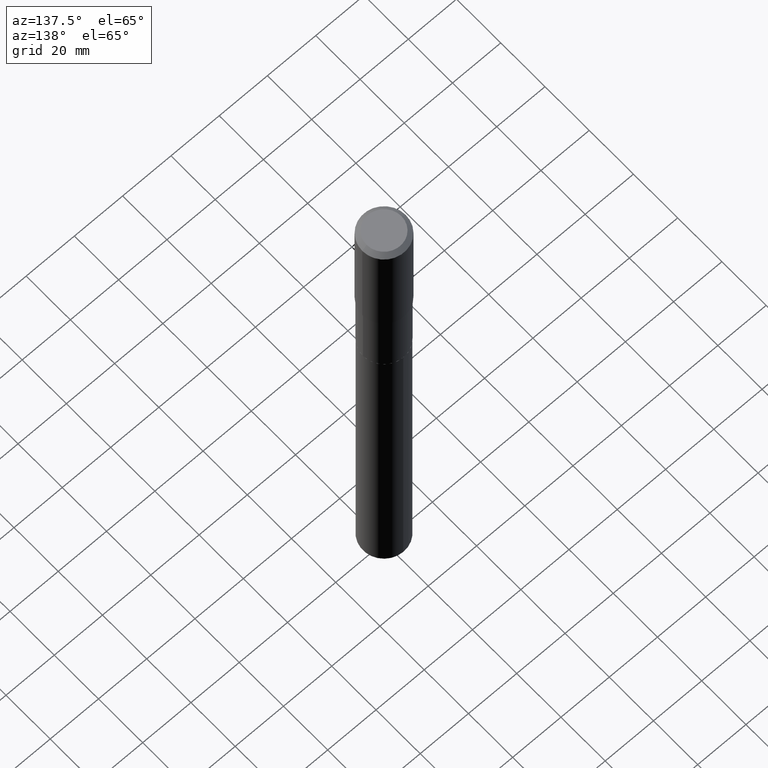
[diagram: clean part render]
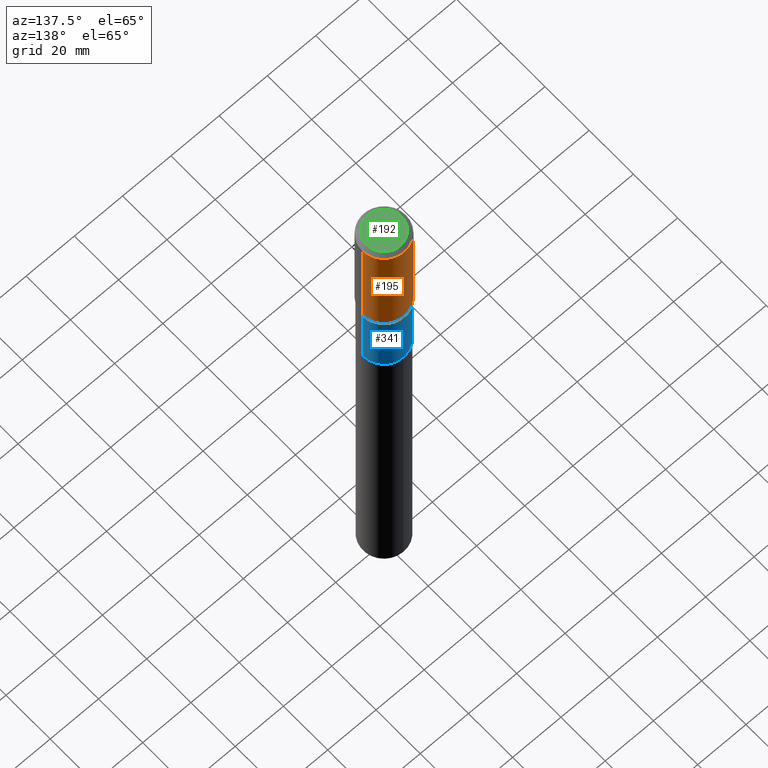
[diagram: same view with three faces highlighted in distinct colors, each labeled with its STEP entity id]
A machine part, auxiliary view with three faces highlighted in distinct colors.
Their STEP definitions:

[orange] entity #195 — the highlighted cylindrical surface (edge-blend (fillet) strip) has radius 9.0005 mm, axis along (-0, 0, 1).
#15 = AXIS2_PLACEMENT_3D ( 'NONE', #34, #301, #450 ) ;
#19 = EDGE_CURVE ( 'NONE', #102, #239, #443, .T. ) ;
#34 = CARTESIAN_POINT ( 'NONE',  ( 4.631962465795266270E-29, -6.613214803902800932E-15, -1.894099999999999673 ) ) ;
#47 = CARTESIAN_POINT ( 'NONE',  ( -0.3543499999999999983, -9.125198590273920027E-16, -0.07087000000000041877 ) ) ;
#52 = ORIENTED_EDGE ( 'NONE', *, *, #462, .F. ) ;
#53 = ORIENTED_EDGE ( 'NONE', *, *, #19, .T. ) ;
#72 = CARTESIAN_POINT ( 'NONE',  ( 0.3543500000000002204, -9.087627628740930810E-15, -1.894099999999999673 ) ) ;
#83 = DIRECTION ( 'NONE',  ( 1.000000000000000000, -6.982962677686266711E-15, 0.000000000000000000 ) ) ;
#102 = VERTEX_POINT ( 'NONE', #72 ) ;
#121 = VECTOR ( 'NONE', #232, 39.37007874015748143 ) ;
#155 = CARTESIAN_POINT ( 'NONE',  ( -0.3543500000000002204, -4.095406619736884752E-15, -1.894099999999999673 ) ) ;
#190 = DIRECTION ( 'NONE',  ( -2.445468806185136597E-29, 3.491481338843145583E-15, 1.000000000000000000 ) ) ;
#195 = ADVANCED_FACE ( 'NONE', ( #225 ), #380, .T. ) ;
#200 = ORIENTED_EDGE ( 'NONE', *, *, #233, .F. ) ;
#210 = CIRCLE ( 'NONE', #467, 0.3543499999999999983 ) ;
#222 = LINE ( 'NONE', #377, #452 ) ;
#225 = FACE_OUTER_BOUND ( 'NONE', #358, .T. ) ;
#227 = CARTESIAN_POINT ( 'NONE',  ( 0.3543499999999999983, -2.721854107321943733E-15, -0.07087000000000041877 ) ) ;
#228 = CARTESIAN_POINT ( 'NONE',  ( 1.733103742943416361E-30, -2.474412824838151867E-16, -0.07087000000000041877 ) ) ;
#232 = DIRECTION ( 'NONE',  ( -2.445468806185136877E-29, 3.491481338843145188E-15, 1.000000000000000000 ) ) ;
#233 = EDGE_CURVE ( 'NONE', #237, #322, #210, .T. ) ;
#237 = VERTEX_POINT ( 'NONE', #227 ) ;
#239 = VERTEX_POINT ( 'NONE', #155 ) ;
#247 = ORIENTED_EDGE ( 'NONE', *, *, #476, .T. ) ;
#258 = LINE ( 'NONE', #375, #121 ) ;
#269 = CARTESIAN_POINT ( 'NONE',  ( 0.000000000000000000, 0.000000000000000000, 0.000000000000000000 ) ) ;
#301 = DIRECTION ( 'NONE',  ( -2.445468806185136597E-29, 3.491481338843145583E-15, 1.000000000000000000 ) ) ;
#308 = AXIS2_PLACEMENT_3D ( 'NONE', #269, #190, #461 ) ;
#322 = VERTEX_POINT ( 'NONE', #47 ) ;
#358 = EDGE_LOOP ( 'NONE', ( #53, #247, #200, #52 ) ) ;
#375 = CARTESIAN_POINT ( 'NONE',  ( -0.3543500000000001648, 2.517808184165916180E-15, -1.743024649231826627E-29 ) ) ;
#377 = CARTESIAN_POINT ( 'NONE',  ( 0.3543500000000001648, -2.474412824838129483E-15, 1.727873240503290590E-29 ) ) ;
#380 = CYLINDRICAL_SURFACE ( 'NONE', #308, 0.3543500000000001648 ) ;
#408 = DIRECTION ( 'NONE',  ( -2.445468806185136877E-29, 3.491481338843145188E-15, 1.000000000000000000 ) ) ;
#417 = DIRECTION ( 'NONE',  ( -2.445468806185136597E-29, 3.491481338843145583E-15, 1.000000000000000000 ) ) ;
#443 = CIRCLE ( 'NONE', #15, 0.3543500000000002204 ) ;
#450 = DIRECTION ( 'NONE',  ( 1.000000000000000000, -6.982962677686266711E-15, 0.000000000000000000 ) ) ;
#452 = VECTOR ( 'NONE', #408, 39.37007874015748143 ) ;
#461 = DIRECTION ( 'NONE',  ( 1.000000000000000000, -6.982962677686265922E-15, 4.876176775795935793E-29 ) ) ;
#462 = EDGE_CURVE ( 'NONE', #102, #237, #222, .T. ) ;
#467 = AXIS2_PLACEMENT_3D ( 'NONE', #228, #417, #83 ) ;
#476 = EDGE_CURVE ( 'NONE', #239, #322, #258, .T. ) ;

[blue] entity #341 — the highlighted cylindrical surface (edge-blend (fillet) strip) has radius 8.7312 mm, axis along (-0, 0, 1).
#7 = LINE ( 'NONE', #128, #365 ) ;
#25 = VERTEX_POINT ( 'NONE', #179 ) ;
#31 = CARTESIAN_POINT ( 'NONE',  ( 7.508322875630224719E-29, -1.071989515465011001E-14, -3.070300000000000473 ) ) ;
#49 = EDGE_LOOP ( 'NONE', ( #56, #241, #141, #366 ) ) ;
#55 = CARTESIAN_POINT ( 'NONE',  ( 0.3437499999999999445, -2.400393420454653787E-15, 1.676185766679852578E-29 ) ) ;
#56 = ORIENTED_EDGE ( 'NONE', *, *, #159, .T. ) ;
#57 = EDGE_CURVE ( 'NONE', #357, #94, #324, .T. ) ;
#63 = AXIS2_PLACEMENT_3D ( 'NONE', #299, #332, #214 ) ;
#94 = VERTEX_POINT ( 'NONE', #148 ) ;
#95 = DIRECTION ( 'NONE',  ( -2.445468806185136597E-29, 3.491481338843145583E-15, 1.000000000000000000 ) ) ;
#105 = CYLINDRICAL_SURFACE ( 'NONE', #250, 0.3437499999999999445 ) ;
#128 = CARTESIAN_POINT ( 'NONE',  ( -0.3437499999999999445, 2.442490654175343995E-15, -1.690883937275123355E-29 ) ) ;
#136 = DIRECTION ( 'NONE',  ( 1.000000000000000000, -6.982962677686266711E-15, 4.876176775795935793E-29 ) ) ;
#141 = ORIENTED_EDGE ( 'NONE', *, *, #57, .F. ) ;
#148 = CARTESIAN_POINT ( 'NONE',  ( -0.3437499999999998335, -6.242569176196982176E-15, -1.904700000000000060 ) ) ;
#159 = EDGE_CURVE ( 'NONE', #207, #25, #187, .T. ) ;
#169 = DIRECTION ( 'NONE',  ( -2.445468806185136877E-29, 3.491481338843145188E-15, 1.000000000000000000 ) ) ;
#179 = CARTESIAN_POINT ( 'NONE',  ( -0.3437500000000000000, -6.242569176196980598E-15, -3.070300000000000473 ) ) ;
#187 = CIRCLE ( 'NONE', #469, 0.3437500000000000000 ) ;
#193 = VECTOR ( 'NONE', #169, 39.37007874015748143 ) ;
#207 = VERTEX_POINT ( 'NONE', #265 ) ;
#214 = DIRECTION ( 'NONE',  ( 1.000000000000000000, -6.982962677686266711E-15, 0.000000000000000000 ) ) ;
#241 = ORIENTED_EDGE ( 'NONE', *, *, #252, .T. ) ;
#248 = CARTESIAN_POINT ( 'NONE',  ( 0.3437499999999998335, -9.050617926549193356E-15, -1.904700000000000060 ) ) ;
#250 = AXIS2_PLACEMENT_3D ( 'NONE', #367, #95, #136 ) ;
#252 = EDGE_CURVE ( 'NONE', #25, #94, #7, .T. ) ;
#265 = CARTESIAN_POINT ( 'NONE',  ( 0.3437500000000000000, -1.312028857510476340E-14, -3.070300000000000473 ) ) ;
#299 = CARTESIAN_POINT ( 'NONE',  ( 4.657884435140829401E-29, -6.650224506094539963E-15, -1.904700000000000060 ) ) ;
#305 = DIRECTION ( 'NONE',  ( 1.000000000000000000, -6.982962677686263555E-15, 0.000000000000000000 ) ) ;
#324 = CIRCLE ( 'NONE', #63, 0.3437499999999998335 ) ;
#332 = DIRECTION ( 'NONE',  ( -2.445468806185136597E-29, 3.491481338843145583E-15, 1.000000000000000000 ) ) ;
#341 = ADVANCED_FACE ( 'NONE', ( #360 ), #105, .T. ) ;
#357 = VERTEX_POINT ( 'NONE', #248 ) ;
#360 = FACE_OUTER_BOUND ( 'NONE', #49, .T. ) ;
#365 = VECTOR ( 'NONE', #381, 39.37007874015748143 ) ;
#366 = ORIENTED_EDGE ( 'NONE', *, *, #374, .F. ) ;
#367 = CARTESIAN_POINT ( 'NONE',  ( 0.000000000000000000, 0.000000000000000000, 0.000000000000000000 ) ) ;
#374 = EDGE_CURVE ( 'NONE', #207, #357, #395, .T. ) ;
#381 = DIRECTION ( 'NONE',  ( -2.445468806185136877E-29, 3.491481338843145188E-15, 1.000000000000000000 ) ) ;
#395 = LINE ( 'NONE', #55, #193 ) ;
#446 = DIRECTION ( 'NONE',  ( -2.445468806185136597E-29, 3.491481338843145583E-15, 1.000000000000000000 ) ) ;
#469 = AXIS2_PLACEMENT_3D ( 'NONE', #31, #446, #305 ) ;

[green] entity #192 — the highlighted planar face has unit normal (0, -0, -1).
#17 = ORIENTED_EDGE ( 'NONE', *, *, #71, .T. ) ;
#43 = AXIS2_PLACEMENT_3D ( 'NONE', #158, #306, #309 ) ;
#71 = EDGE_CURVE ( 'NONE', #201, #257, #146, .T. ) ;
#79 = DIRECTION ( 'NONE',  ( 2.438088387897960049E-29, -3.491481338843145188E-15, -1.000000000000000000 ) ) ;
#89 = DIRECTION ( 'NONE',  ( -1.000000000000000000, 6.982962677686265922E-15, -4.876176775795935793E-29 ) ) ;
#93 = AXIS2_PLACEMENT_3D ( 'NONE', #194, #79, #89 ) ;
#114 = DIRECTION ( 'NONE',  ( 1.000000000000000000, -6.982962677686266711E-15, 4.876249319814053138E-29 ) ) ;
#146 = CIRCLE ( 'NONE', #419, 0.2834800000000000098 ) ;
#152 = CIRCLE ( 'NONE', #43, 0.2834800000000000098 ) ;
#158 = CARTESIAN_POINT ( 'NONE',  ( -9.439721640706191963E-47, 1.347742071746725396E-32, 3.860086710912455110E-18 ) ) ;
#177 = DIRECTION ( 'NONE',  ( -2.445468806185136597E-29, 3.491481338843145583E-15, 1.000000000000000000 ) ) ;
#181 = CARTESIAN_POINT ( 'NONE',  ( -9.439721640706191963E-47, 1.347742071746725396E-32, 3.860086710912455110E-18 ) ) ;
#191 = CARTESIAN_POINT ( 'NONE',  ( -0.2834800000000000098, 2.103250901112408108E-15, 3.860086710898179346E-18 ) ) ;
#192 = ADVANCED_FACE ( 'NONE', ( #196 ), #234, .F. ) ;
#194 = CARTESIAN_POINT ( 'NONE',  ( -4.719860820353095981E-47, 6.738710358733626979E-33, 1.930043355456227555E-18 ) ) ;
#196 = FACE_OUTER_BOUND ( 'NONE', #249, .T. ) ;
#201 = VERTEX_POINT ( 'NONE', #385 ) ;
#234 = PLANE ( 'NONE',  #93 ) ;
#240 = EDGE_CURVE ( 'NONE', #257, #201, #152, .T. ) ;
#249 = EDGE_LOOP ( 'NONE', ( #251, #17 ) ) ;
#251 = ORIENTED_EDGE ( 'NONE', *, *, #240, .T. ) ;
#257 = VERTEX_POINT ( 'NONE', #191 ) ;
#306 = DIRECTION ( 'NONE',  ( -2.445468806185136597E-29, 3.491481338843145583E-15, 1.000000000000000000 ) ) ;
#309 = DIRECTION ( 'NONE',  ( 1.000000000000000000, -6.982962677686266711E-15, 4.876249319814053138E-29 ) ) ;
#385 = CARTESIAN_POINT ( 'NONE',  ( 0.2834800000000000098, -2.311636360201216027E-15, 3.860086710927458874E-18 ) ) ;
#419 = AXIS2_PLACEMENT_3D ( 'NONE', #181, #177, #114 ) ;